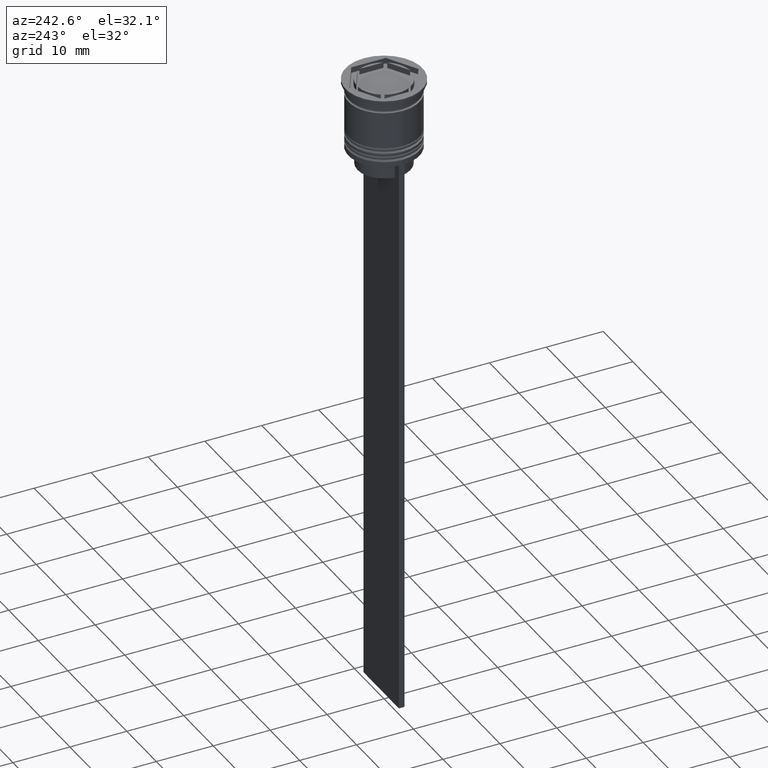
[diagram: clean part render]
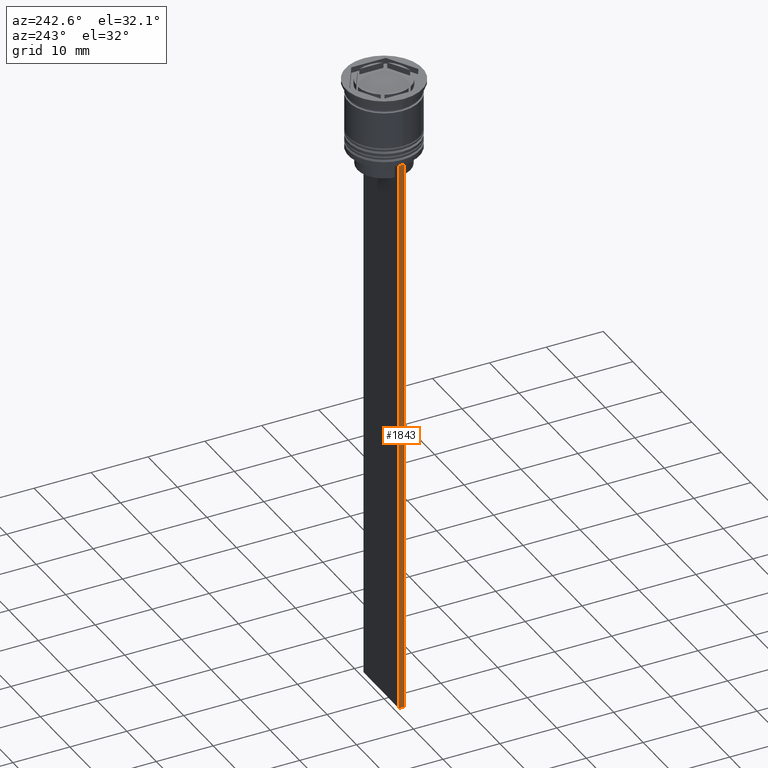
[diagram: same view with one face highlighted and labeled with its STEP entity id]
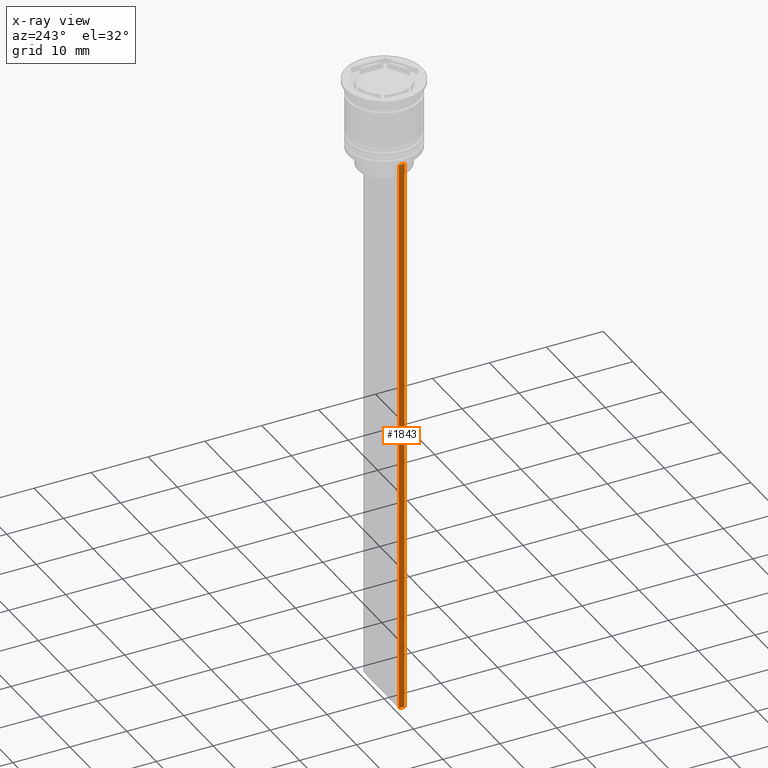
[diagram: x-ray of the same camera — body ghosted, the highlighted face saturated]
A machine part, auxiliary view. The second image highlights one B-rep face of the part: STEP entity #1843.
The next image is the same camera in x-ray: the body ghosted, the highlighted face saturated — about 0% of this face is hidden behind the body in this view.
In plain terms, the highlighted planar face has unit normal (-1, 0, 0).
Its self-contained STEP definition (entity closure, byte-faithful):
#102 = VECTOR ( 'NONE', #1033, 1000.000000000000000 ) ;
#337 = EDGE_CURVE ( 'NONE', #1893, #2292, #837, .T. ) ;
#462 = AXIS2_PLACEMENT_3D ( 'NONE', #1929, #465, #1547 ) ;
#465 = DIRECTION ( 'NONE',  ( -1.000000000000000000, 0.000000000000000000, 0.000000000000000000 ) ) ;
#517 = CARTESIAN_POINT ( 'NONE',  ( -5.999999999999983125, 0.4999999999999985012, -12.50000000000000000 ) ) ;
#522 = ORIENTED_EDGE ( 'NONE', *, *, #1593, .T. ) ;
#630 = CARTESIAN_POINT ( 'NONE',  ( -5.999999999999983125, -0.5000000000000017764, -12.50000000000000000 ) ) ;
#794 = EDGE_CURVE ( 'NONE', #2292, #1787, #1767, .T. ) ;
#825 = ORIENTED_EDGE ( 'NONE', *, *, #1965, .F. ) ;
#837 = LINE ( 'NONE', #885, #1524 ) ;
#885 = CARTESIAN_POINT ( 'NONE',  ( -5.999999999999983125, -0.5000000000000017764, -0.4584054212077061097 ) ) ;
#896 = ORIENTED_EDGE ( 'NONE', *, *, #337, .F. ) ;
#910 = ORIENTED_EDGE ( 'NONE', *, *, #794, .F. ) ;
#970 = DIRECTION ( 'NONE',  ( 0.000000000000000000, -1.000000000000000000, 0.000000000000000000 ) ) ;
#1011 = LINE ( 'NONE', #1191, #102 ) ;
#1016 = LINE ( 'NONE', #1896, #2269 ) ;
#1033 = DIRECTION ( 'NONE',  ( 0.000000000000000000, 0.000000000000000000, -1.000000000000000000 ) ) ;
#1191 = CARTESIAN_POINT ( 'NONE',  ( -5.999999999999983125, 0.4999999999999982792, -0.4584054212077061097 ) ) ;
#1205 = CARTESIAN_POINT ( 'NONE',  ( -5.999999999999983125, -0.5000000000000017764, -112.5000000000000000 ) ) ;
#1248 = DIRECTION ( 'NONE',  ( 0.000000000000000000, 0.000000000000000000, -1.000000000000000000 ) ) ;
#1367 = VERTEX_POINT ( 'NONE', #517 ) ;
#1517 = CARTESIAN_POINT ( 'NONE',  ( -5.999999999999983125, -0.5000000000000017764, -112.5000000000000000 ) ) ;
#1524 = VECTOR ( 'NONE', #1248, 1000.000000000000000 ) ;
#1547 = DIRECTION ( 'NONE',  ( 0.000000000000000000, 0.000000000000000000, 1.000000000000000000 ) ) ;
#1593 = EDGE_CURVE ( 'NONE', #1367, #1787, #1011, .T. ) ;
#1698 = CARTESIAN_POINT ( 'NONE',  ( -5.999999999999983125, 0.4999999999999982792, -112.5000000000000000 ) ) ;
#1718 = FACE_OUTER_BOUND ( 'NONE', #2280, .T. ) ;
#1733 = PLANE ( 'NONE',  #462 ) ;
#1767 = LINE ( 'NONE', #1205, #1922 ) ;
#1787 = VERTEX_POINT ( 'NONE', #1698 ) ;
#1843 = ADVANCED_FACE ( 'NONE', ( #1718 ), #1733, .T. ) ;
#1893 = VERTEX_POINT ( 'NONE', #630 ) ;
#1896 = CARTESIAN_POINT ( 'NONE',  ( -5.999999999999983125, -0.5000000000000017764, -12.50000000000000000 ) ) ;
#1922 = VECTOR ( 'NONE', #2314, 1000.000000000000000 ) ;
#1929 = CARTESIAN_POINT ( 'NONE',  ( -5.999999999999983125, -0.5000000000000017764, -0.4584054212077061097 ) ) ;
#1965 = EDGE_CURVE ( 'NONE', #1367, #1893, #1016, .T. ) ;
#2269 = VECTOR ( 'NONE', #970, 1000.000000000000000 ) ;
#2280 = EDGE_LOOP ( 'NONE', ( #825, #522, #910, #896 ) ) ;
#2292 = VERTEX_POINT ( 'NONE', #1517 ) ;
#2314 = DIRECTION ( 'NONE',  ( 0.000000000000000000, 1.000000000000000000, 0.000000000000000000 ) ) ;